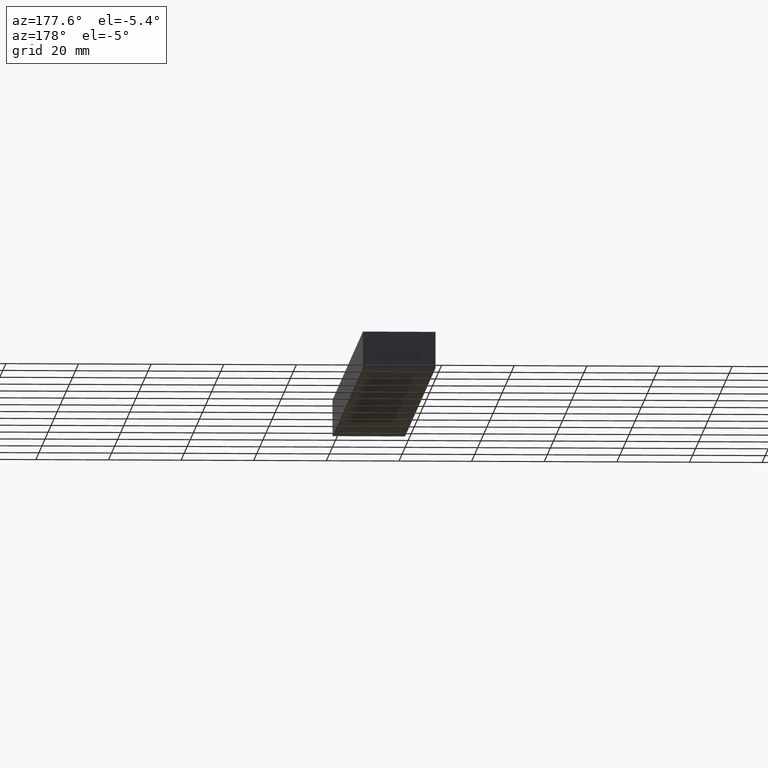
[diagram: clean part render]
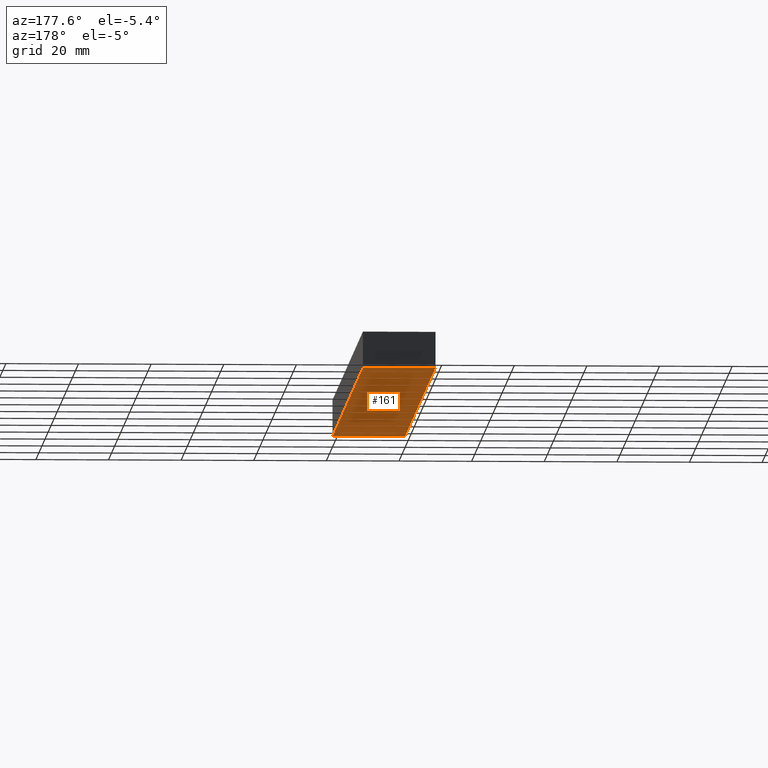
[diagram: same view with one face highlighted and labeled with its STEP entity id]
A machine part, auxiliary view. The second image highlights one B-rep face of the part: STEP entity #161.
In plain terms, the highlighted planar face has unit normal (0, 0, -1).
Its self-contained STEP definition (entity closure, byte-faithful):
#6 = FACE_OUTER_BOUND ( 'NONE', #208, .T. ) ;
#11 = DIRECTION ( 'NONE',  ( 1.000000000000000000, -0.0000000000000000000, -0.0000000000000000000 ) ) ;
#18 = LINE ( 'NONE', #152, #26 ) ;
#19 = VECTOR ( 'NONE', #11, 1000.000000000000000 ) ;
#26 = VECTOR ( 'NONE', #133, 1000.000000000000000 ) ;
#33 = CARTESIAN_POINT ( 'NONE',  ( 0.0000000000000000000, 200.0000000000000000, 0.0000000000000000000 ) ) ;
#34 = CARTESIAN_POINT ( 'NONE',  ( 20.00000000000000000, 200.0000000000000000, 0.0000000000000000000 ) ) ;
#42 = EDGE_CURVE ( 'NONE', #88, #103, #142, .T. ) ;
#64 = EDGE_CURVE ( 'NONE', #148, #103, #104, .T. ) ;
#65 = PLANE ( 'NONE',  #238 ) ;
#67 = DIRECTION ( 'NONE',  ( -1.000000000000000000, 0.0000000000000000000, 0.0000000000000000000 ) ) ;
#78 = ORIENTED_EDGE ( 'NONE', *, *, #64, .F. ) ;
#87 = DIRECTION ( 'NONE',  ( 1.000000000000000000, -0.0000000000000000000, -0.0000000000000000000 ) ) ;
#88 = VERTEX_POINT ( 'NONE', #34 ) ;
#95 = CARTESIAN_POINT ( 'NONE',  ( 0.0000000000000000000, 0.0000000000000000000, 0.0000000000000000000 ) ) ;
#103 = VERTEX_POINT ( 'NONE', #225 ) ;
#104 = LINE ( 'NONE', #192, #231 ) ;
#106 = VERTEX_POINT ( 'NONE', #166 ) ;
#125 = DIRECTION ( 'NONE',  ( 0.0000000000000000000, -1.000000000000000000, 0.0000000000000000000 ) ) ;
#133 = DIRECTION ( 'NONE',  ( 0.0000000000000000000, -1.000000000000000000, 0.0000000000000000000 ) ) ;
#142 = LINE ( 'NONE', #200, #171 ) ;
#148 = VERTEX_POINT ( 'NONE', #95 ) ;
#152 = CARTESIAN_POINT ( 'NONE',  ( 0.0000000000000000000, 1000.000000000000000, 0.0000000000000000000 ) ) ;
#153 = EDGE_CURVE ( 'NONE', #106, #148, #18, .T. ) ;
#161 = ADVANCED_FACE ( 'NONE', ( #6 ), #65, .T. ) ;
#166 = CARTESIAN_POINT ( 'NONE',  ( 0.0000000000000000000, 200.0000000000000000, 0.0000000000000000000 ) ) ;
#170 = DIRECTION ( 'NONE',  ( 0.0000000000000000000, 0.0000000000000000000, -1.000000000000000000 ) ) ;
#171 = VECTOR ( 'NONE', #125, 1000.000000000000000 ) ;
#172 = CARTESIAN_POINT ( 'NONE',  ( 0.0000000000000000000, 1000.000000000000000, 0.0000000000000000000 ) ) ;
#192 = CARTESIAN_POINT ( 'NONE',  ( 0.0000000000000000000, 0.0000000000000000000, 0.0000000000000000000 ) ) ;
#200 = CARTESIAN_POINT ( 'NONE',  ( 20.00000000000000000, 1000.000000000000000, 0.0000000000000000000 ) ) ;
#208 = EDGE_LOOP ( 'NONE', ( #78, #227, #224, #233 ) ) ;
#211 = LINE ( 'NONE', #33, #19 ) ;
#218 = EDGE_CURVE ( 'NONE', #106, #88, #211, .T. ) ;
#224 = ORIENTED_EDGE ( 'NONE', *, *, #218, .T. ) ;
#225 = CARTESIAN_POINT ( 'NONE',  ( 20.00000000000000000, 0.0000000000000000000, 0.0000000000000000000 ) ) ;
#227 = ORIENTED_EDGE ( 'NONE', *, *, #153, .F. ) ;
#231 = VECTOR ( 'NONE', #87, 1000.000000000000000 ) ;
#233 = ORIENTED_EDGE ( 'NONE', *, *, #42, .T. ) ;
#238 = AXIS2_PLACEMENT_3D ( 'NONE', #172, #170, #67 ) ;